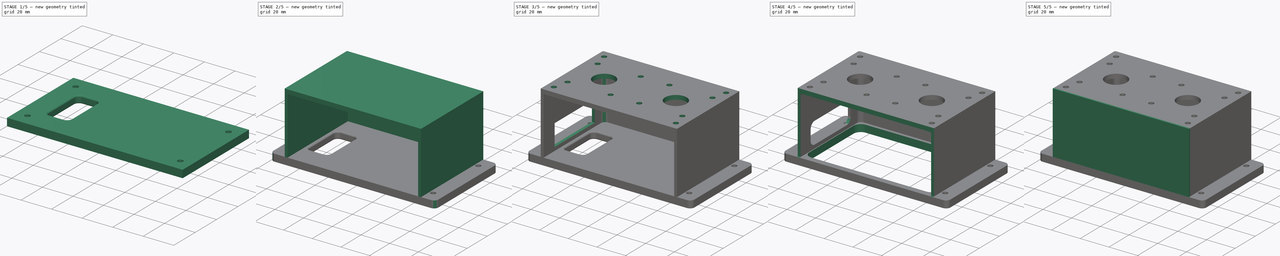
[diagram: build sequence overview — one tinted view per stage of 5, left to right]
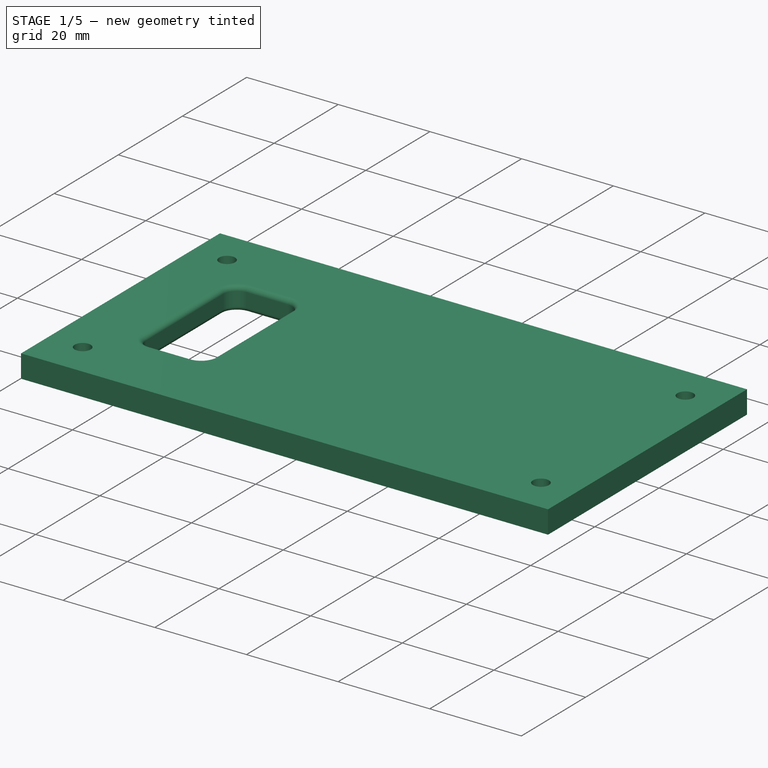
[diagram: stage 1 of 5 — iso view after this stage's code; geometry added in this stage tinted green]
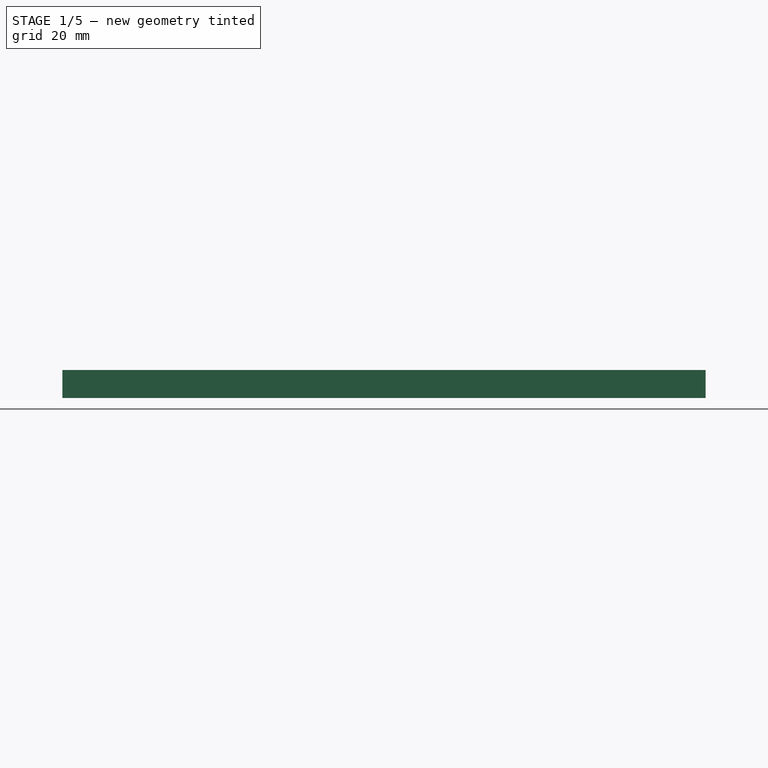
[diagram: stage 1 of 5 — front view after this stage's code; geometry added in this stage tinted green]
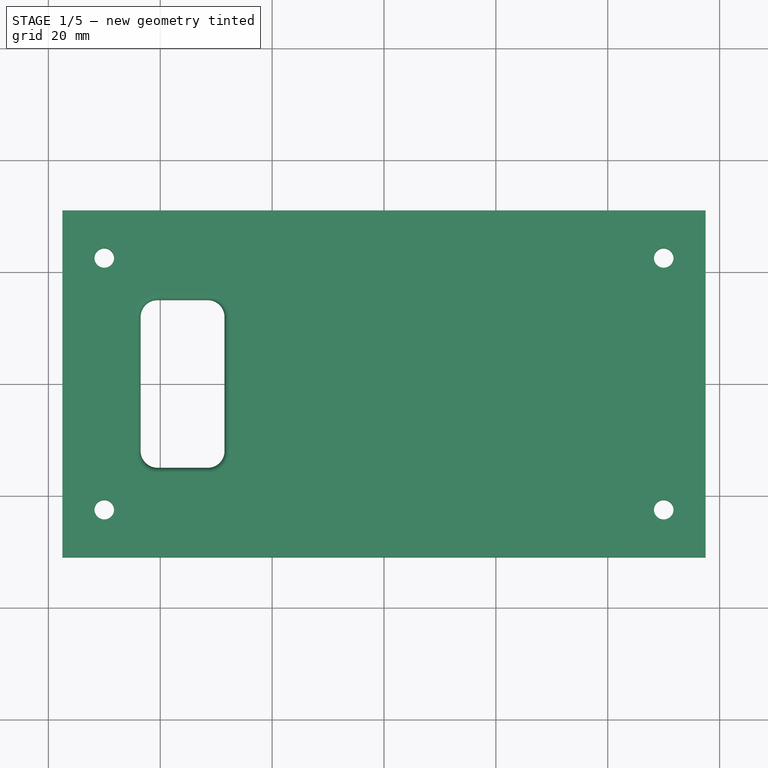
[diagram: stage 1 of 5 — top view after this stage's code; geometry added in this stage tinted green]
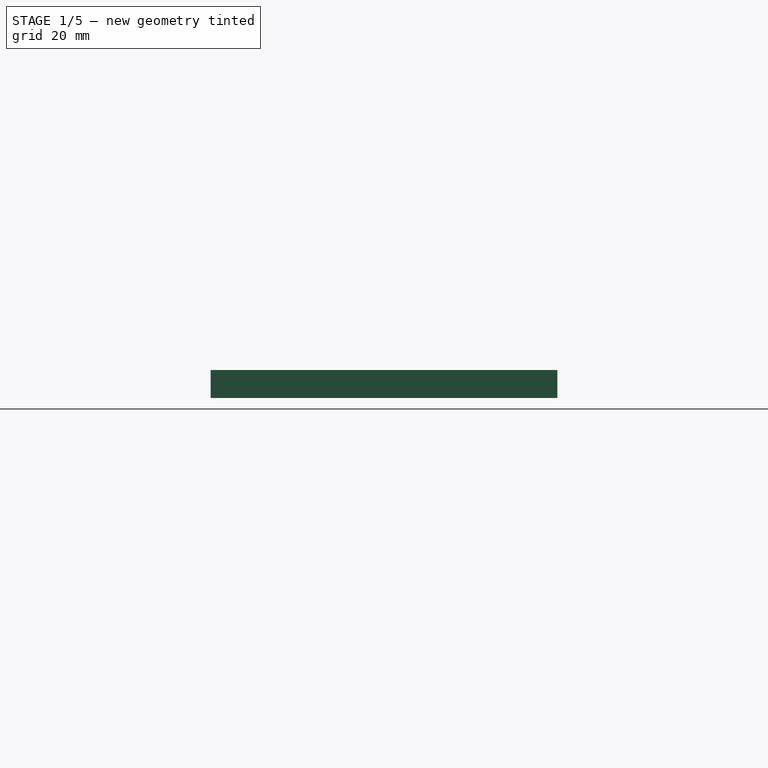
[diagram: stage 1 of 5 — right view after this stage's code; geometry added in this stage tinted green]
FCSTD DOCUMENT  (FreeCAD 0.21R33771 (Git))
Label: vertical_axis_mount
License: All rights reserved
LicenseURL: http://en.wikipedia.org/wiki/All_rights_reserved
objects: Sketcher::SketchObject×8, PartDesign::Fillet×7, PartDesign::Pad×5, PartDesign::Pocket×4, PartDesign::Body×1
note: 41 computed .brp shape members not serialized (recipe doc carries the construction recipe); baked Part::Feature solids carry a one-line shape summary decoded from their .brp

FEATURE [Sketcher::SketchObject] Sketch
  FullyConstrained = false
  MapMode = 5
  Support = -> [XY_Plane]
  sketch-geometry (26):
    g0: LineSegment StartX=-50 StartY=-22.5 StartZ=0 EndX=-50 EndY=22.5 EndZ=0
    g1: LineSegment StartX=-50 StartY=22.5 StartZ=0 EndX=50 EndY=22.5 EndZ=0
    g2: LineSegment StartX=50 StartY=22.5 StartZ=0 EndX=50 EndY=-22.5 EndZ=0
    g3: LineSegment StartX=50 StartY=-22.5 StartZ=0 EndX=-50 EndY=-22.5 EndZ=0
    g4: GeomPoint X=0 Y=0 Z=0
    g5: Circle CenterX=-50 CenterY=22.5 CenterZ=0 NormalX=0 NormalY=0 NormalZ=1 AngleXU=0 Radius=1.75
    g6: Circle CenterX=50 CenterY=22.5 CenterZ=0 NormalX=0 NormalY=0 NormalZ=1 AngleXU=0 Radius=1.75
    g7: Circle CenterX=-50 CenterY=-22.5 CenterZ=0 NormalX=0 NormalY=0 NormalZ=1 AngleXU=0 Radius=1.75
    g8: Circle CenterX=50 CenterY=-22.5 CenterZ=0 NormalX=0 NormalY=0 NormalZ=1 AngleXU=0 Radius=1.75
    g9: LineSegment StartX=-57.5 StartY=-31 StartZ=0 EndX=-57.5 EndY=31 EndZ=0
    g10: LineSegment StartX=-57.5 StartY=31 StartZ=0 EndX=57.5 EndY=31 EndZ=0
    g11: LineSegment StartX=57.5 StartY=31 StartZ=0 EndX=57.5 EndY=-31 EndZ=0
    g12: LineSegment StartX=57.5 StartY=-31 StartZ=0 EndX=-57.5 EndY=-31 EndZ=0
    g13: GeomPoint X=0 Y=0 Z=0
    g14: ArcOfCircle CenterX=-40.5 CenterY=12 CenterZ=0 NormalX=0 NormalY=0 NormalZ=1 AngleXU=0 Radius=3 StartAngle=1.5708 EndAngle=3.14159
    g15: ArcOfCircle CenterX=-31.5 CenterY=12 CenterZ=0 NormalX=0 NormalY=0 NormalZ=1 AngleXU=0 Radius=3 StartAngle=1e-16 EndAngle=1.5708
    g16: LineSegment StartX=-28.5 StartY=12 StartZ=0 EndX=-28.5 EndY=-12 EndZ=0
    g17: ArcOfCircle CenterX=-31.5 CenterY=-12 CenterZ=0 NormalX=0 NormalY=0 NormalZ=1 AngleXU=0 Radius=3 StartAngle=4.71239 EndAngle=6.28319
    g18: ArcOfCircle CenterX=-40.5 CenterY=-12 CenterZ=0 NormalX=0 NormalY=0 NormalZ=1 AngleXU=0 Radius=3 StartAngle=3.14159 EndAngle=4.71239
    g19: LineSegment StartX=-43.5 StartY=-12 StartZ=0 EndX=-43.5 EndY=12 EndZ=0
    g20: GeomPoint X=-28.5 Y=-15 Z=0
    g21: LineSegment StartX=-40.5 StartY=-15 StartZ=0 EndX=-40.5 EndY=15 EndZ=0
    g22: LineSegment StartX=-31.5 StartY=15 StartZ=0 EndX=-31.5 EndY=-15 EndZ=0
    g23: GeomPoint X=-36 Y=0 Z=0
    g24: LineSegment StartX=-40.5 StartY=15 StartZ=0 EndX=-31.5 EndY=15 EndZ=0
    g25: LineSegment StartX=-40.5 StartY=-15 StartZ=0 EndX=-31.5 EndY=-15 EndZ=0
  constraints (62):
    c: Coincident(g0,g1)
    c: Coincident(g1,g2)
    c: Coincident(g2,g3)
    c: Coincident(g3,g0)
    c: Horizontal(g1)
    c: Horizontal(g3)
    c: Vertical(g0)
    c: Vertical(g2)
    c: Symmetric(g1,g0,g4)
    c: Coincident(g4,g-1)
    c: DistanceX(g1,g1) = 100
    c: DistanceY(g2,g2) = 45
    c: Coincident(g5,g0)
    c: Coincident(g6,g1)
    c: Coincident(g7,g0)
    c: Coincident(g8,g2)
    c: Coincident(g9,g10)
    c: Coincident(g10,g11)
    c: Coincident(g11,g12)
    c: Coincident(g12,g9)
    c: Horizontal(g10)
    c: Horizontal(g12)
    c: Vertical(g9)
    c: Vertical(g11)
    c: Symmetric(g10,g9,g13)
    c: Coincident(g13,g4)
    c: Equal(g7,g8)
    c: Equal(g7,g6)
    c: Equal(g7,g5)
    c: Diameter(g7) = 3.5
    c: DistanceX(g12,g12) = 115
    c: DistanceY(g11,g11) = 62
    c: Tangent(g15,g16) = 1.5708
    c: Tangent(g16,g17) = 1.5708
    c: Coincident(g21,g18) = 1.5708
    c: Tangent(g18,g19) = 1.5708
    c: Tangent(g19,g14) = 1.5708
    c: Vertical(g16)
    c: Vertical(g19)
    c: Equal(g15,g17)
    c: Equal(g17,g18)
    c: PointOnObject(g20,g16)
    c: Radius(g17) = 3
    c: Vertical(g21)
    c: Symmetric(g15,g21,g23)
    c: PointOnObject(g23,g-1)
    c: Coincident(g22,g17)
    c: DistanceY(g22,g22) = 30
    c: DistanceX(g23,g4) = 36
    c: Coincident(g24,g14)
    c: Coincident(g24,g15)
    c: Horizontal(g24)
    c: Coincident(g25,g18)
    c: Coincident(g25,g17)
    c: Horizontal(g25)
    c: Equal(g18,g14)
    c: PointOnObject(g14,g21)
    c: Coincident(g14,g21)
    c: Coincident(g15,g22)
    c: Parallel(g22,g21)
    c: PointOnObject(g15,g22)
    c: DistanceX(g18,g16) = 15
FEATURE [PartDesign::Pad] Pad
  Direction = (0,0,1)
  Length = 5
  Length2 = 10
  Profile = -> Sketch
  ReferenceAxis = -> Sketch [N_Axis]
  Type = 0
FEATURE [PartDesign::Fillet] Fillet
  Base = -> Pad [Edge24,Edge27,Edge30,Edge21,Edge18,Edge15,Edge35,Edge33]
  BaseFeature = -> Pad
  Radius = 1
  SupportTransform = false
  UseAllEdges = false
FEATURE [PartDesign::Fillet] Fillet001
  Base = -> Fillet [Edge15,Edge16,Edge17,Edge18,Edge19,Edge20,Edge6,Edge3]
  BaseFeature = -> Fillet
  Radius = 1
  SupportTransform = false
  UseAllEdges = false
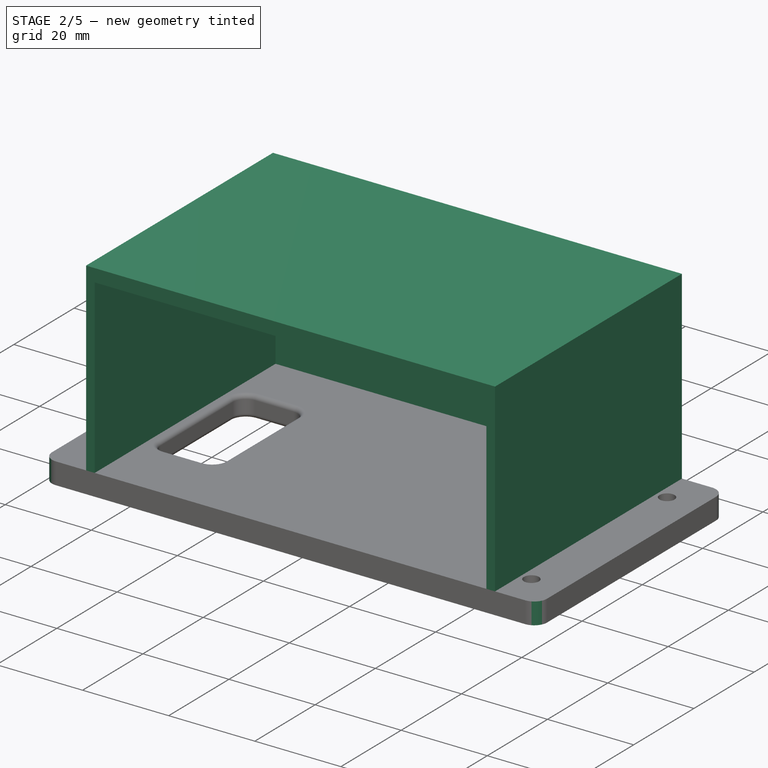
[diagram: stage 2 of 5 — iso view after this stage's code; geometry added in this stage tinted green]
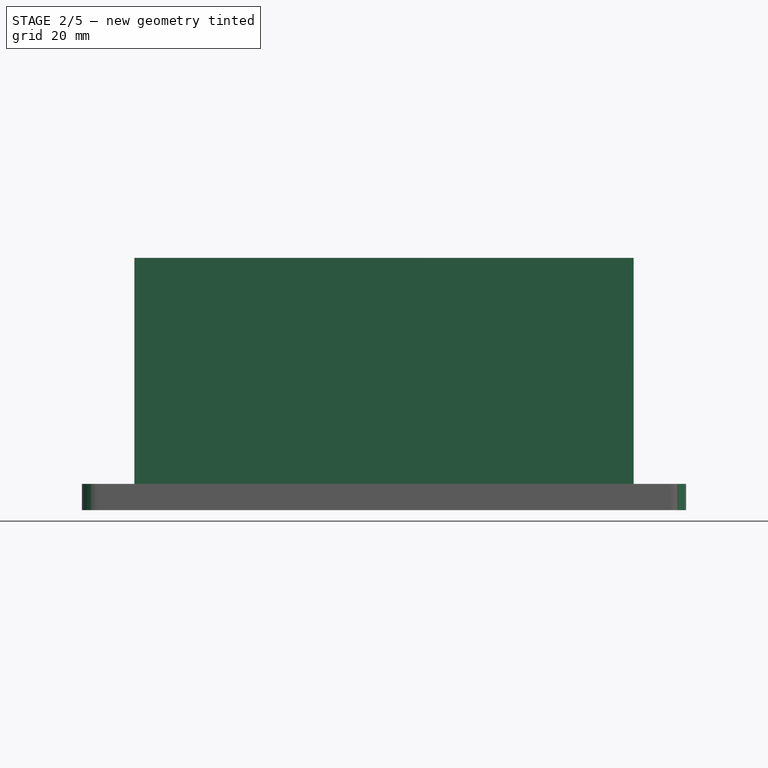
[diagram: stage 2 of 5 — front view after this stage's code; geometry added in this stage tinted green]
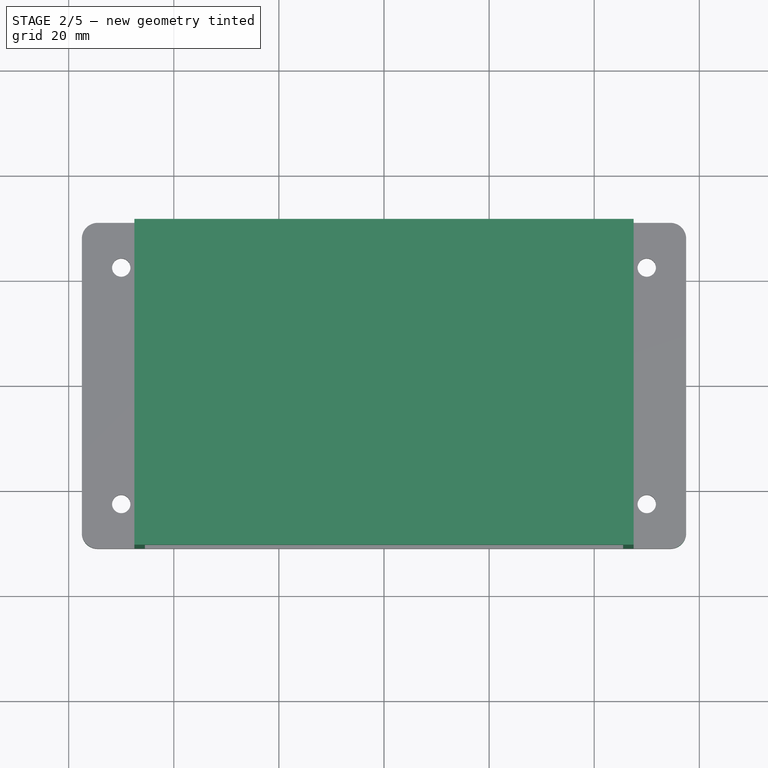
[diagram: stage 2 of 5 — top view after this stage's code; geometry added in this stage tinted green]
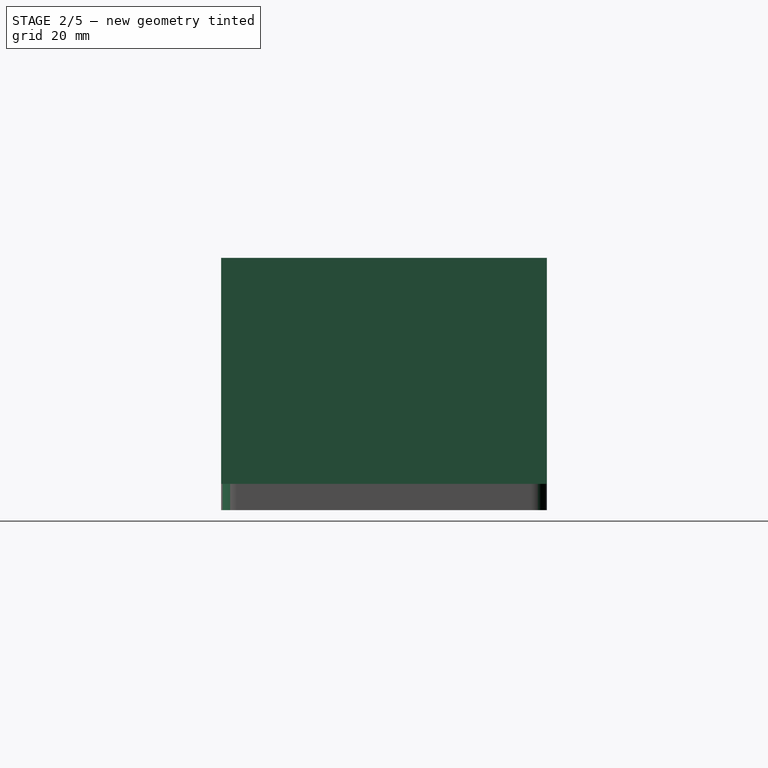
[diagram: stage 2 of 5 — right view after this stage's code; geometry added in this stage tinted green]
FEATURE [PartDesign::Fillet] Fillet002
  Base = -> Fillet001 [Edge67,Edge68,Edge70,Edge69]
  BaseFeature = -> Fillet001
  Radius = 3
  SupportTransform = false
  UseAllEdges = false
FEATURE [Sketcher::SketchObject] Sketch001
  FullyConstrained = true
  MapMode = 5
  Placement = pos=(0,0,5) rot=(0,0,1;0rad)
  Support = -> [Fillet002]
  sketch-geometry (9):
    g0: LineSegment StartX=-47.5 StartY=31 StartZ=0 EndX=47.5 EndY=31 EndZ=0
    g1: LineSegment StartX=47.5 StartY=31 StartZ=0 EndX=47.5 EndY=-31 EndZ=0
    g2: LineSegment StartX=-47.5 StartY=-31 StartZ=0 EndX=-47.5 EndY=31 EndZ=0
    g3: LineSegment StartX=-45.5 StartY=-31 StartZ=0 EndX=45.5 EndY=-31 EndZ=0
    g4: LineSegment StartX=45.5 StartY=-31 StartZ=0 EndX=45.5 EndY=29 EndZ=0
    g5: LineSegment StartX=45.5 StartY=29 StartZ=0 EndX=-45.5 EndY=29 EndZ=0
    g6: LineSegment StartX=-45.5 StartY=29 StartZ=0 EndX=-45.5 EndY=-31 EndZ=0
    g7: LineSegment StartX=47.5 StartY=-31 StartZ=0 EndX=45.5 EndY=-31 EndZ=0
    g8: LineSegment StartX=-45.5 StartY=-31 StartZ=0 EndX=-47.5 EndY=-31 EndZ=0
  constraints (26):
    c: Coincident(g0,g1)
    c: Coincident(g2,g0)
    c: Horizontal(g0)
    c: Vertical(g1)
    c: Vertical(g2)
    c: DistanceY(g-1,g0) = 31
    c: DistanceY(g1,g1) = 62
    c: DistanceX(g0,g0) = 95
    c: DistanceX(g-1,g0) = 47.5
    c: Coincident(g3,g4)
    c: Coincident(g4,g5)
    c: Coincident(g5,g6)
    c: Coincident(g6,g3)
    c: Horizontal(g3)
    c: Horizontal(g5)
    c: Vertical(g4)
    c: Vertical(g6)
    c: DistanceY(g5,g0) = 2
    c: DistanceX(g0,g5) = 2
    c: DistanceX(g4,g0) = 2
    c: Coincident(g7,g1)
    c: Coincident(g7,g3)
    c: Horizontal(g7)
    c: Coincident(g8,g3)
    c: Horizontal(g8)
    c: Coincident(g8,g2)
FEATURE [PartDesign::Pad] Pad001
  BaseFeature = -> Fillet002
  Direction = (0,0,1)
  Length = 40
  Length2 = 10
  Profile = -> Sketch001
  ReferenceAxis = -> Sketch001 [N_Axis]
  Type = 0
FEATURE [Sketcher::SketchObject] Sketch002
  FullyConstrained = true
  MapMode = 5
  Placement = pos=(0,0,45) rot=(0,0,1;0rad)
  Support = -> [Pad001]
  sketch-geometry (5):
    g0: LineSegment StartX=-47.5 StartY=-31 StartZ=0 EndX=-47.5 EndY=31 EndZ=0
    g1: LineSegment StartX=-47.5 StartY=31 StartZ=0 EndX=47.5 EndY=31 EndZ=0
    g2: LineSegment StartX=47.5 StartY=31 StartZ=0 EndX=47.5 EndY=-31 EndZ=0
    g3: LineSegment StartX=47.5 StartY=-31 StartZ=0 EndX=-47.5 EndY=-31 EndZ=0
    g4: GeomPoint X=0 Y=0 Z=0
  constraints (12):
    c: Coincident(g0,g1)
    c: Coincident(g1,g2)
    c: Coincident(g2,g3)
    c: Coincident(g3,g0)
    c: Horizontal(g1)
    c: Horizontal(g3)
    c: Vertical(g0)
    c: Vertical(g2)
    c: Symmetric(g1,g0,g4)
    c: Coincident(g4,g-1)
    c: DistanceX(g1,g1) = 95
    c: DistanceY(g2,g2) = 62
FEATURE [PartDesign::Pad] Pad002
  BaseFeature = -> Pad001
  Direction = (0,0,1)
  Length = 3
  Length2 = 10
  Profile = -> Sketch002
  ReferenceAxis = -> Sketch002 [N_Axis]
  Type = 0
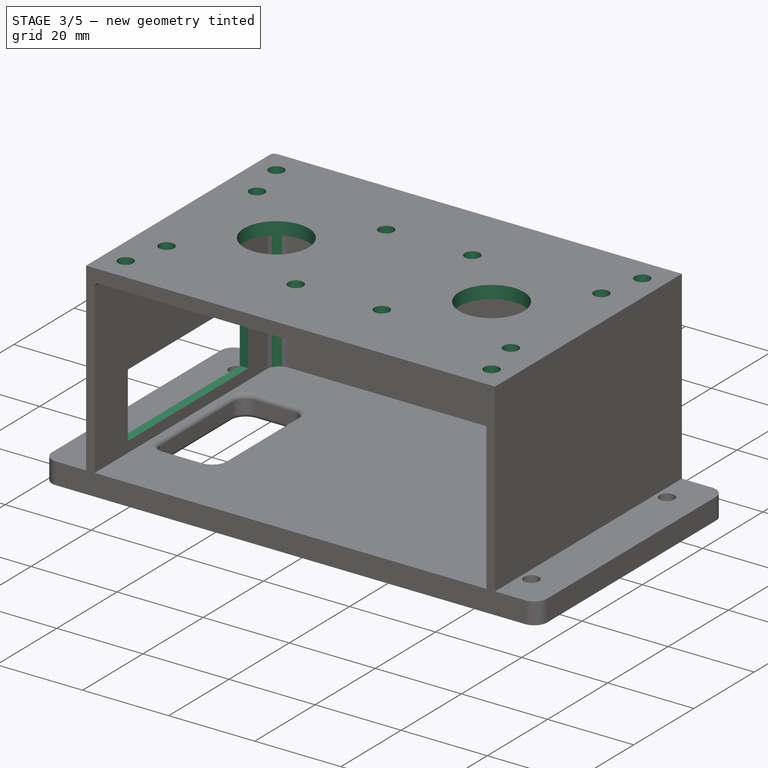
[diagram: stage 3 of 5 — iso view after this stage's code; geometry added in this stage tinted green]
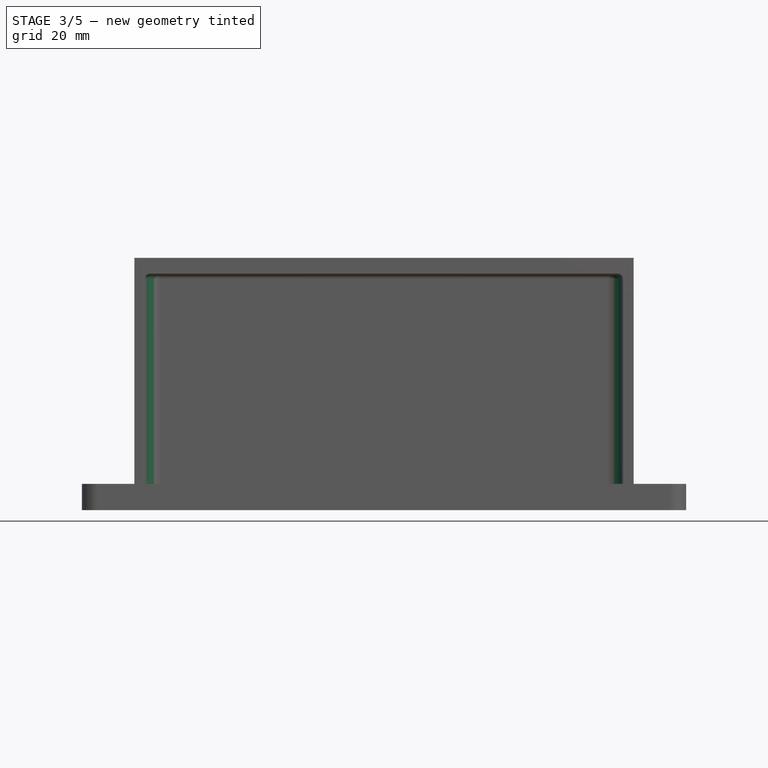
[diagram: stage 3 of 5 — front view after this stage's code; geometry added in this stage tinted green]
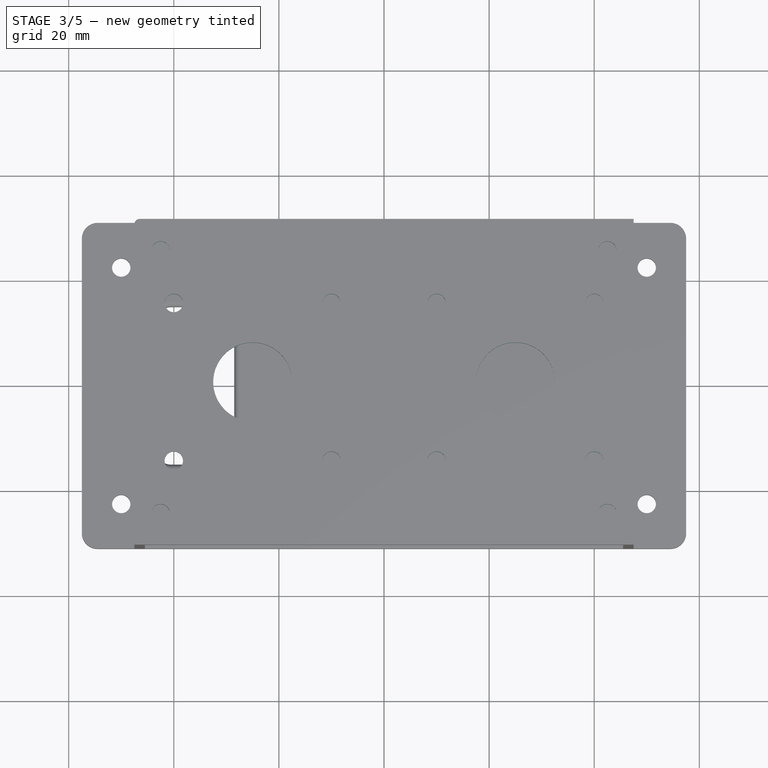
[diagram: stage 3 of 5 — top view after this stage's code; geometry added in this stage tinted green]
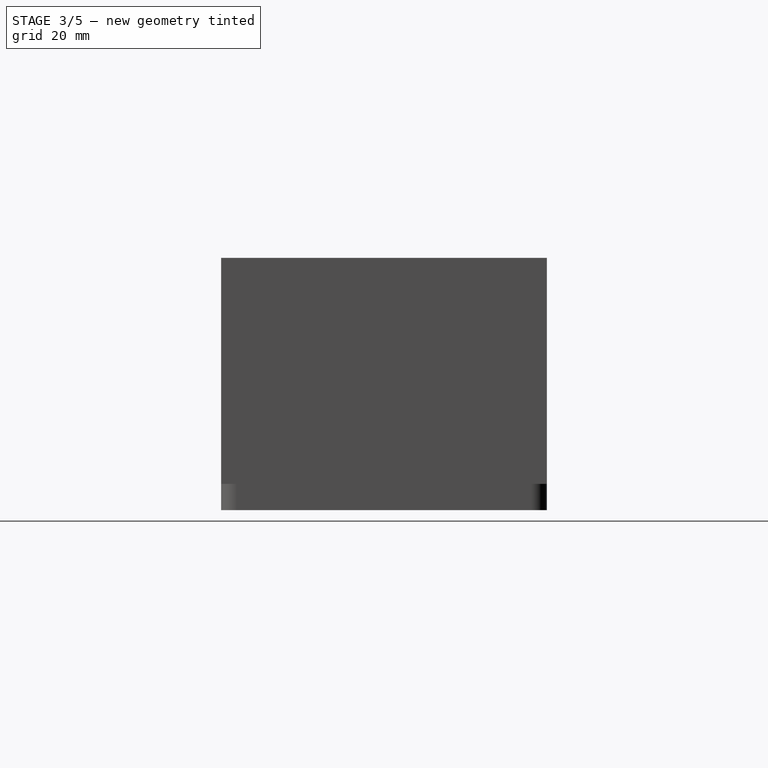
[diagram: stage 3 of 5 — right view after this stage's code; geometry added in this stage tinted green]
FEATURE [PartDesign::Fillet] Fillet003
  Base = -> Pad002 [Edge96,Edge102]
  BaseFeature = -> Pad002
  Radius = 3
  SupportTransform = false
  UseAllEdges = false
FEATURE [PartDesign::Fillet] Fillet004
  Base = -> Fillet003 [Edge105,Edge17,Edge19,Edge28,Edge32,Edge31]
  BaseFeature = -> Fillet003
  Radius = 1
  SupportTransform = false
  UseAllEdges = false
FEATURE [Sketcher::SketchObject] Sketch003
  FullyConstrained = true
  MapMode = 5
  Placement = pos=(-47.5,0,0) rot=(0.57735,-0.57735,-0.57735;2.0944rad)
  Support = -> [Fillet004]
  sketch-geometry (5):
    g0: LineSegment StartX=-20 StartY=7.5 StartZ=0 EndX=-20 EndY=22.5 EndZ=0
    g1: LineSegment StartX=-20 StartY=22.5 StartZ=0 EndX=20 EndY=22.5 EndZ=0
    g2: LineSegment StartX=20 StartY=22.5 StartZ=0 EndX=20 EndY=7.5 EndZ=0
    g3: LineSegment StartX=20 StartY=7.5 StartZ=0 EndX=-20 EndY=7.5 EndZ=0
    g4: GeomPoint X=0 Y=15 Z=0
  constraints (13):
    c: Coincident(g0,g1)
    c: Coincident(g1,g2)
    c: Coincident(g2,g3)
    c: Coincident(g3,g0)
    c: Horizontal(g1)
    c: Horizontal(g3)
    c: Vertical(g0)
    c: Vertical(g2)
    c: Symmetric(g1,g0,g4)
    c: PointOnObject(g4,g-2)
    c: DistanceY(g2,g2) = 15
    c: DistanceX(g3,g3) = 40
    c: DistanceY(g-1,g4) = 15
FEATURE [PartDesign::Pocket] Pocket
  BaseFeature = -> Fillet004
  Direction = (1,0,0)
  Length = 5
  Length2 = 5
  Profile = -> Sketch003
  ReferenceAxis = -> Sketch003 [N_Axis]
  Type = 0
FEATURE [Sketcher::SketchObject] Sketch004
  FullyConstrained = true
  MapMode = 5
  Placement = pos=(0,0,48) rot=(0,0,1;0rad)
  sketch-geometry (44):
    g0: LineSegment StartX=-40 StartY=15 StartZ=0 EndX=40 EndY=15 EndZ=0
    g1: LineSegment StartX=40 StartY=15 StartZ=0 EndX=40 EndY=-15 EndZ=0
    g2: LineSegment StartX=40 StartY=-15 StartZ=0 EndX=-40 EndY=-15 EndZ=0
    g3: GeomPoint X=0 Y=0 Z=0
    g4: LineSegment StartX=-40 StartY=-15 StartZ=0 EndX=-40 EndY=15 EndZ=0
    g5: LineSegment StartX=-40 StartY=15 StartZ=0 EndX=-10 EndY=15 EndZ=0
    g6: LineSegment StartX=-10 StartY=15 StartZ=0 EndX=-10 EndY=-15 EndZ=0
    g7: LineSegment StartX=-10 StartY=-15 StartZ=0 EndX=-40 EndY=-15 EndZ=0
    g8: GeomPoint X=-25 Y=-7e-16 Z=0
    g9: LineSegment StartX=40 StartY=15 StartZ=0 EndX=10 EndY=15 EndZ=0
    g10: LineSegment StartX=10 StartY=15 StartZ=0 EndX=10 EndY=-15 EndZ=0
    g11: LineSegment StartX=10 StartY=-15 StartZ=0 EndX=40 EndY=-15 EndZ=0
    g12: LineSegment StartX=40 StartY=-15 StartZ=0 EndX=40 EndY=15 EndZ=0
    g13: LineSegment StartX=10 StartY=-15 StartZ=0 EndX=40 EndY=15 EndZ=0
    g14: GeomPoint X=25 Y=0 Z=0
    g15: ArcOfCircle CenterX=-25 CenterY=-7e-16 CenterZ=0 NormalX=0 NormalY=0 NormalZ=1 AngleXU=0 Radius=7.5 StartAngle=1e-16 EndAngle=3.14159
    g16: ArcOfCircle CenterX=25 CenterY=0 CenterZ=0 NormalX=0 NormalY=0 NormalZ=1 AngleXU=0 Radius=7.5 StartAngle=0 EndAngle=3.14159
    g17: LineSegment StartX=-32.5 StartY=2e-16 StartZ=0 EndX=-17.5 EndY=-2.6e-15 EndZ=0
    g18: LineSegment StartX=-17.5 StartY=-2.6e-15 StartZ=0 EndX=-17.5 EndY=-50 EndZ=0
    g19: LineSegment StartX=-17.5 StartY=-50 StartZ=0 EndX=-32.5 EndY=-50 EndZ=0
    g20: LineSegment StartX=-32.5 StartY=-50 StartZ=0 EndX=-32.5 EndY=0 EndZ=0
    g21: LineSegment StartX=17.5 StartY=9e-16 StartZ=0 EndX=32.5 EndY=0 EndZ=0
    g22: LineSegment StartX=32.5 StartY=0 StartZ=0 EndX=32.5 EndY=-50 EndZ=0
    g23: LineSegment StartX=32.5 StartY=-50 StartZ=0 EndX=17.5 EndY=-50 EndZ=0
    g24: LineSegment StartX=17.5 StartY=-50 StartZ=0 EndX=17.5 EndY=0 EndZ=0
    g25: Circle CenterX=-40 CenterY=-15 CenterZ=0 NormalX=0 NormalY=0 NormalZ=1 AngleXU=0 Radius=1.75
    g26: Circle CenterX=-40 CenterY=15 CenterZ=0 NormalX=0 NormalY=0 NormalZ=1 AngleXU=0 Radius=1.75
    g27: Circle CenterX=-10 CenterY=15 CenterZ=0 NormalX=0 NormalY=0 NormalZ=1 AngleXU=0 Radius=1.75
    g28: Circle CenterX=10 CenterY=15 CenterZ=0 NormalX=0 NormalY=0 NormalZ=1 AngleXU=0 Radius=1.75
    g29: Circle CenterX=40 CenterY=15 CenterZ=0 NormalX=0 NormalY=0 NormalZ=1 AngleXU=0 Radius=1.75
    g30: Circle CenterX=40 CenterY=-15 CenterZ=0 NormalX=0 NormalY=0 NormalZ=1 AngleXU=0 Radius=1.75
    g31: Circle CenterX=10 CenterY=-15 CenterZ=0 NormalX=0 NormalY=0 NormalZ=1 AngleXU=0 Radius=1.75
    g32: Circle CenterX=-10 CenterY=-15 CenterZ=0 NormalX=0 NormalY=0 NormalZ=1 AngleXU=0 Radius=1.75
    g33: LineSegment StartX=-42.5 StartY=-25 StartZ=0 EndX=-42.5 EndY=25 EndZ=0
    g34: LineSegment StartX=-42.5 StartY=25 StartZ=0 EndX=42.5 EndY=25 EndZ=0
    g35: LineSegment StartX=42.5 StartY=25 StartZ=0 EndX=42.5 EndY=-25 EndZ=0
    g36: LineSegment StartX=42.5 StartY=-25 StartZ=0 EndX=-42.5 EndY=-25 EndZ=0
    g37: GeomPoint X=0 Y=0 Z=0
    g38: Circle CenterX=-42.5 CenterY=-25 CenterZ=0 NormalX=0 NormalY=0 NormalZ=1 AngleXU=0 Radius=1.75
    g39: Circle CenterX=-42.5 CenterY=25 CenterZ=0 NormalX=0 NormalY=0 NormalZ=1 AngleXU=0 Radius=1.75
    g40: Circle CenterX=42.5 CenterY=25 CenterZ=0 NormalX=0 NormalY=0 NormalZ=1 AngleXU=0 Radius=1.75
    g41: Circle CenterX=42.5 CenterY=-25 CenterZ=0 NormalX=0 NormalY=0 NormalZ=1 AngleXU=0 Radius=1.75
    g42: ArcOfCircle CenterX=-25 CenterY=-7e-16 CenterZ=0 NormalX=0 NormalY=0 NormalZ=1 AngleXU=0 Radius=7.5 StartAngle=3.14159 EndAngle=6.28319
    g43: ArcOfCircle CenterX=25 CenterY=0 CenterZ=0 NormalX=0 NormalY=0 NormalZ=1 AngleXU=0 Radius=7.5 StartAngle=3.14159 EndAngle=6.28319
  constraints (106):
    c: Coincident(g0,g1)
    c: Coincident(g1,g2)
    c: Horizontal(g0)
    c: Horizontal(g2)
    c: Vertical(g1)
    c: Symmetric(g0,g2,g3)
    c: Coincident(g3,g-1)
    c: Coincident(g4,g5)
    c: Coincident(g5,g6)
    c: Coincident(g6,g7)
    c: Coincident(g7,g4)
    c: Horizontal(g5)
    c: Horizontal(g7)
    c: Vertical(g4)
    c: Vertical(g6)
    c: Symmetric(g5,g4,g8)
    c: Equal(g5,g6)
    c: DistanceY(g6,g6) = 30
    c: Coincident(g2,g4)
    c: Coincident(g4,g0)
    c: Coincident(g9,g10)
    c: Coincident(g10,g11)
    c: Coincident(g11,g12)
    c: Coincident(g12,g9)
    c: Horizontal(g9)
    c: Horizontal(g11)
    c: Vertical(g10)
    c: Vertical(g12)
    c: Coincident(g9,g0)
    c: PointOnObject(g10,g2)
    c: DistanceX(g9,g0) = 30
    c: DistanceX(g5,g9) = 20
    c: Coincident(g13,g10)
    c: Coincident(g13,g0)
    c: PointOnObject(g14,g13)
    c: PointOnObject(g14,g-1)
    c: Coincident(g15,g8)
    c: PointOnObject(g15,g-1)
    c: PointOnObject(g15,g-1)
    c: Coincident(g16,g14)
    c: PointOnObject(g16,g-1)
    c: Equal(g16,g15)
    c: Coincident(g17,g18)
    c: Coincident(g18,g19)
    c: Coincident(g19,g20)
    c: Coincident(g20,g17)
    c: Horizontal(g19)
    c: Vertical(g18)
    c: Vertical(g20)
    c: Coincident(g17,g15)
    c: Coincident(g15,g17)
    c: Coincident(g21,g22)
    c: Coincident(g22,g23)
    c: Coincident(g23,g24)
    c: Coincident(g24,g21)
    c: Horizontal(g23)
    c: Vertical(g22)
    c: Vertical(g24)
    c: Coincident(g21,g16)
    c: Coincident(g21,g16)
    c: Equal(g24,g18)
    c: DistanceY(g22,g22) = 50
    c: DistanceX(g19,g19) = 15
    c: Coincident(g25,g2)
    c: Coincident(g26,g0)
    c: Coincident(g27,g5)
    c: Coincident(g28,g9)
    c: Coincident(g29,g0)
    c: Coincident(g30,g1)
    c: Coincident(g31,g10)
    c: Coincident(g32,g6)
    c: Equal(g32,g31)
    c: Equal(g32,g30)
    c: Equal(g32,g29)
    c: Equal(g32,g28)
    c: Equal(g32,g27)
    c: Equal(g32,g26)
    c: Equal(g32,g25)
    c: Diameter(g32) = 3.5
    c: Coincident(g33,g34)
    c: Coincident(g34,g35)
    c: Coincident(g35,g36)
    c: Coincident(g36,g33)
    c: Horizontal(g34)
    c: Horizontal(g36)
    c: Vertical(g33)
    c: Vertical(g35)
    c: Symmetric(g34,g33,g37)
    c: Coincident(g37,g3)
    c: DistanceY(g33,g33) = 50
    c: DistanceX(g34,g34) = 85
    c: Coincident(g38,g33)
    c: Coincident(g39,g33)
    c: Coincident(g40,g34)
    c: Coincident(g41,g35)
    c: Equal(g41,g38)
    c: Equal(g41,g39)
    c: Equal(g41,g40)
    c: Diameter(g41) = 3.5
    c: Coincident(g42,g15)
    c: Coincident(g42,g15)
    c: Coincident(g42,g15)
    c: Coincident(g43,g16)
    c: Coincident(g43,g16)
    c: PointOnObject(g43,g-1)
    c: Parallel(g21,g-1)
FEATURE [PartDesign::Pocket] Pocket001
  BaseFeature = -> Pocket
  Direction = (0,0,-1)
  Length = 5
  Length2 = 5
  Profile = -> Sketch004
  ReferenceAxis = -> Sketch004 [N_Axis]
  Type = 0
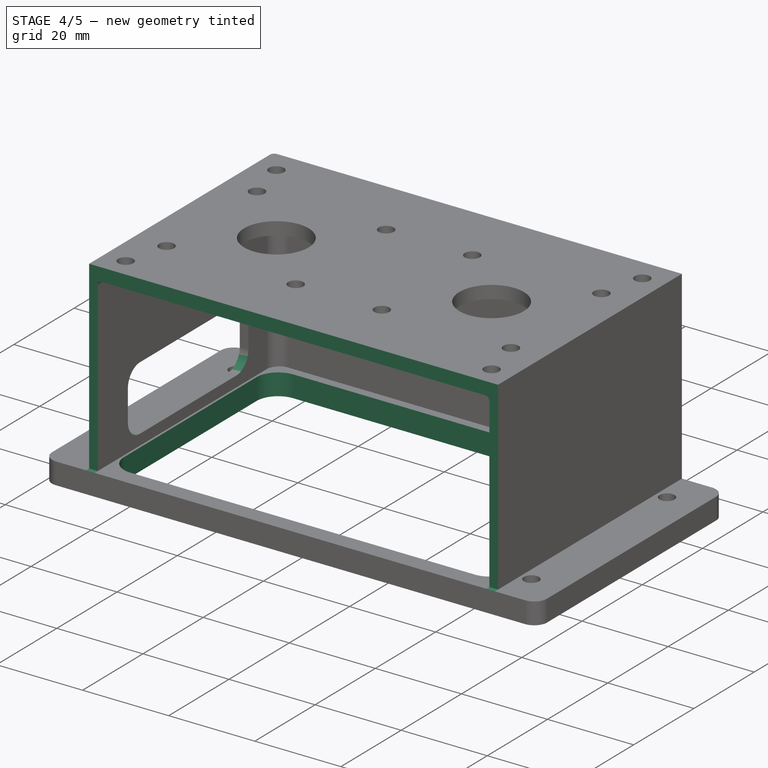
[diagram: stage 4 of 5 — iso view after this stage's code; geometry added in this stage tinted green]
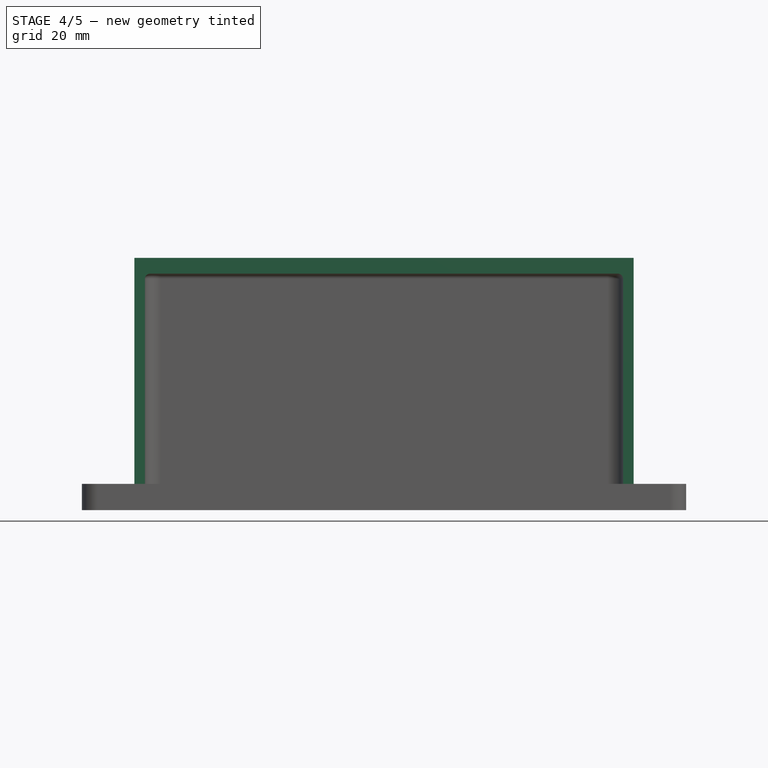
[diagram: stage 4 of 5 — front view after this stage's code; geometry added in this stage tinted green]
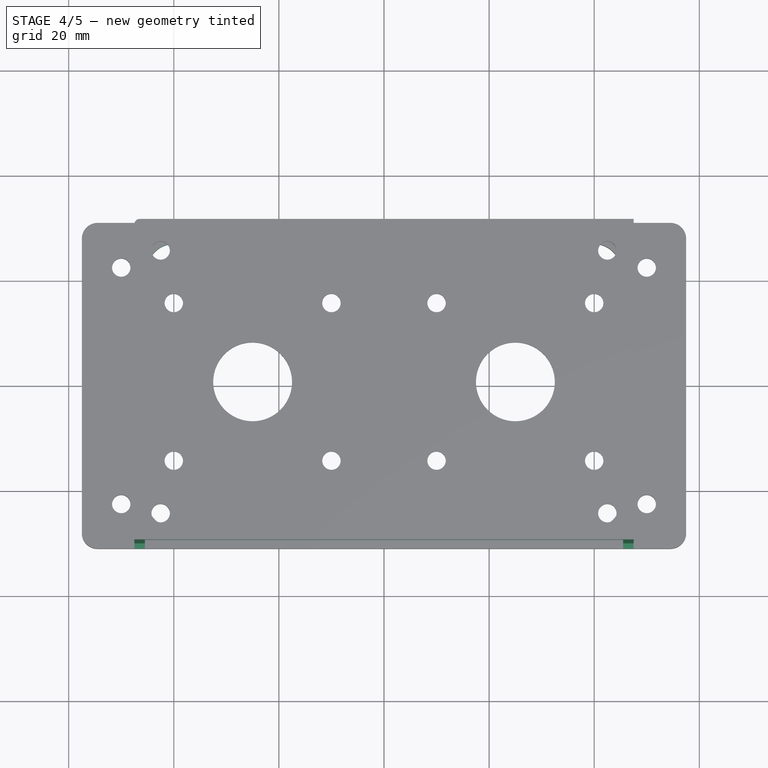
[diagram: stage 4 of 5 — top view after this stage's code; geometry added in this stage tinted green]
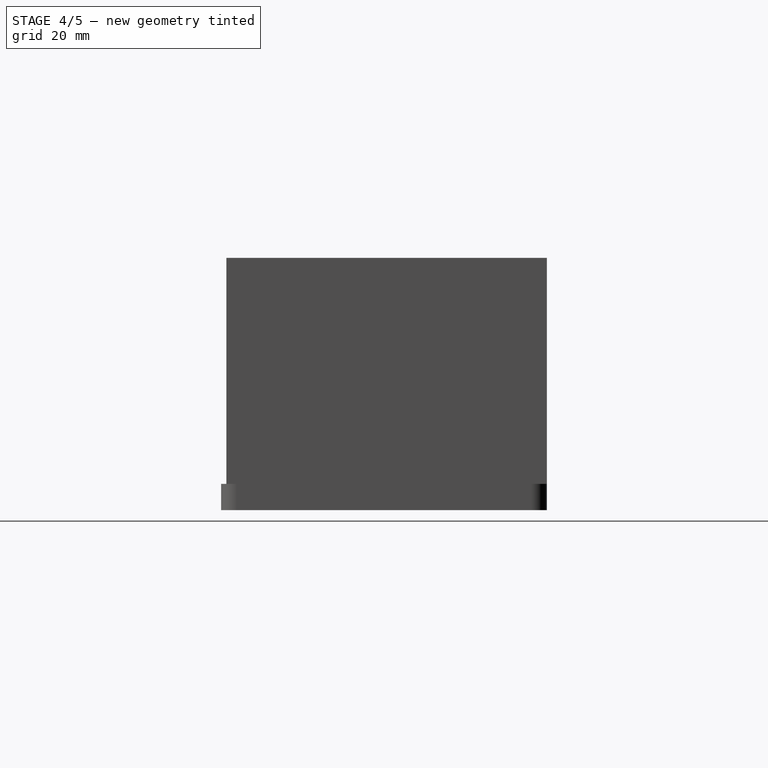
[diagram: stage 4 of 5 — right view after this stage's code; geometry added in this stage tinted green]
FEATURE [PartDesign::Fillet] Fillet005
  Base = -> Pocket001 [Edge33,Edge37,Edge32,Edge35]
  BaseFeature = -> Pocket001
  Radius = 4
  SupportTransform = false
  UseAllEdges = false
FEATURE [Sketcher::SketchObject] Sketch005
  FullyConstrained = true
  MapMode = 5
  Placement = pos=(0,0,0) rot=(1,0,0;3.14159rad)
  Support = -> [Fillet005]
  sketch-geometry (15):
    g0: ArcOfCircle CenterX=-40 CenterY=22 CenterZ=0 NormalX=0 NormalY=0 NormalZ=1 AngleXU=0 Radius=5 StartAngle=1.5708 EndAngle=3.14159
    g1: LineSegment StartX=-40 StartY=27 StartZ=0 EndX=40 EndY=27 EndZ=0
    g2: ArcOfCircle CenterX=40 CenterY=22 CenterZ=0 NormalX=0 NormalY=0 NormalZ=1 AngleXU=0 Radius=5 StartAngle=0 EndAngle=1.5708
    g3: LineSegment StartX=45 StartY=22 StartZ=0 EndX=45 EndY=-22 EndZ=0
    g4: ArcOfCircle CenterX=40 CenterY=-22 CenterZ=0 NormalX=0 NormalY=0 NormalZ=1 AngleXU=0 Radius=5 StartAngle=4.71239 EndAngle=6.28319
    g5: LineSegment StartX=40 StartY=-27 StartZ=0 EndX=-40 EndY=-27 EndZ=0
    g6: ArcOfCircle CenterX=-40 CenterY=-22 CenterZ=0 NormalX=0 NormalY=0 NormalZ=1 AngleXU=0 Radius=5 StartAngle=3.14159 EndAngle=4.71239
    g7: LineSegment StartX=-45 StartY=-22 StartZ=0 EndX=-45 EndY=22 EndZ=0
    g8: GeomPoint X=-45 Y=27 Z=0
    g9: GeomPoint X=45 Y=-27 Z=0
    g10: LineSegment StartX=-40 StartY=-22 StartZ=0 EndX=-40 EndY=22 EndZ=0
    g11: LineSegment StartX=-40 StartY=22 StartZ=0 EndX=40 EndY=22 EndZ=0
    g12: LineSegment StartX=40 StartY=22 StartZ=0 EndX=40 EndY=-22 EndZ=0
    g13: LineSegment StartX=40 StartY=-22 StartZ=0 EndX=-40 EndY=-22 EndZ=0
    g14: GeomPoint X=0 Y=0 Z=0
  constraints (33):
    c: Tangent(g0,g1) = 1.5708
    c: Tangent(g1,g2) = 1.5708
    c: Tangent(g2,g3) = 1.5708
    c: Tangent(g3,g4) = 1.5708
    c: Tangent(g4,g5) = 1.5708
    c: Tangent(g5,g6) = 1.5708
    c: Tangent(g6,g7) = 1.5708
    c: Tangent(g7,g0) = 1.5708
    c: Horizontal(g1)
    c: Horizontal(g5)
    c: Vertical(g3)
    c: Vertical(g7)
    c: Equal(g0,g2)
    c: Equal(g2,g4)
    c: Equal(g4,g6)
    c: PointOnObject(g8,g1)
    c: PointOnObject(g8,g7)
    c: PointOnObject(g9,g3)
    c: PointOnObject(g9,g5)
    c: Coincident(g10,g11)
    c: Coincident(g11,g12)
    c: Coincident(g12,g13)
    c: Coincident(g13,g10)
    c: Horizontal(g11)
    c: Vertical(g12)
    c: Symmetric(g11,g10,g14)
    c: Coincident(g14,g-1)
    c: Coincident(g10,g0)
    c: Coincident(g6,g10)
    c: DistanceY(g5,g0) = 54
    c: Radius(g0) = 5
    c: Coincident(g4,g12)
    c: DistanceX(g11,g11) = 80
FEATURE [PartDesign::Pocket] Pocket002
  BaseFeature = -> Fillet005
  Direction = (0,0,1)
  Length = 5
  Length2 = 5
  Profile = -> Sketch005
  ReferenceAxis = -> Sketch005 [N_Axis]
  Type = 0
FEATURE [Sketcher::SketchObject] Sketch006
  FullyConstrained = true
  MapMode = 5
  Placement = pos=(0,-31,0) rot=(1,0,0;1.5708rad)
  Support = -> [Pocket002]
  sketch-geometry (4):
    g0: LineSegment StartX=-47.5 StartY=5 StartZ=0 EndX=47.5 EndY=5 EndZ=0
    g1: LineSegment StartX=47.5 StartY=5 StartZ=0 EndX=47.5 EndY=48 EndZ=0
    g2: LineSegment StartX=47.5 StartY=48 StartZ=0 EndX=-47.5 EndY=48 EndZ=0
    g3: LineSegment StartX=-47.5 StartY=48 StartZ=0 EndX=-47.5 EndY=5 EndZ=0
  constraints (12):
    c: Coincident(g0,g1)
    c: Coincident(g1,g2)
    c: Coincident(g2,g3)
    c: Coincident(g3,g0)
    c: Horizontal(g0)
    c: Horizontal(g2)
    c: Vertical(g1)
    c: Vertical(g3)
    c: DistanceY(g-1,g1) = 48
    c: DistanceX(g2,g2) = 95
    c: DistanceX(g-1,g1) = 47.5
    c: DistanceY(g-1,g0) = 5
FEATURE [PartDesign::Pocket] Pocket003
  BaseFeature = -> Pocket002
  Direction = (0,1,-2e-16)
  Length = 1
  Length2 = 5
  Profile = -> Sketch006
  ReferenceAxis = -> Sketch006 [N_Axis]
  Type = 0
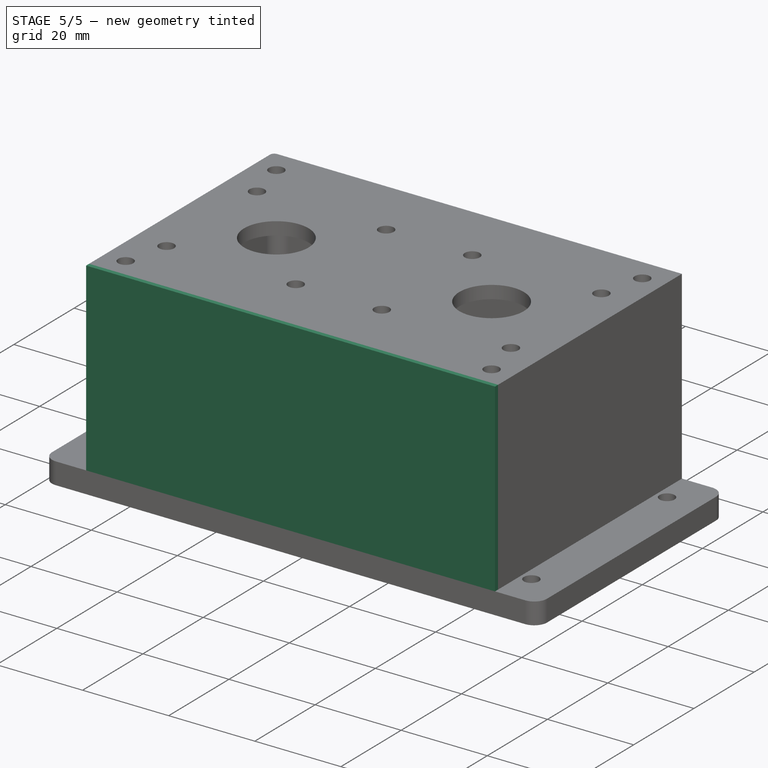
[diagram: stage 5 of 5 — iso view after this stage's code; geometry added in this stage tinted green]
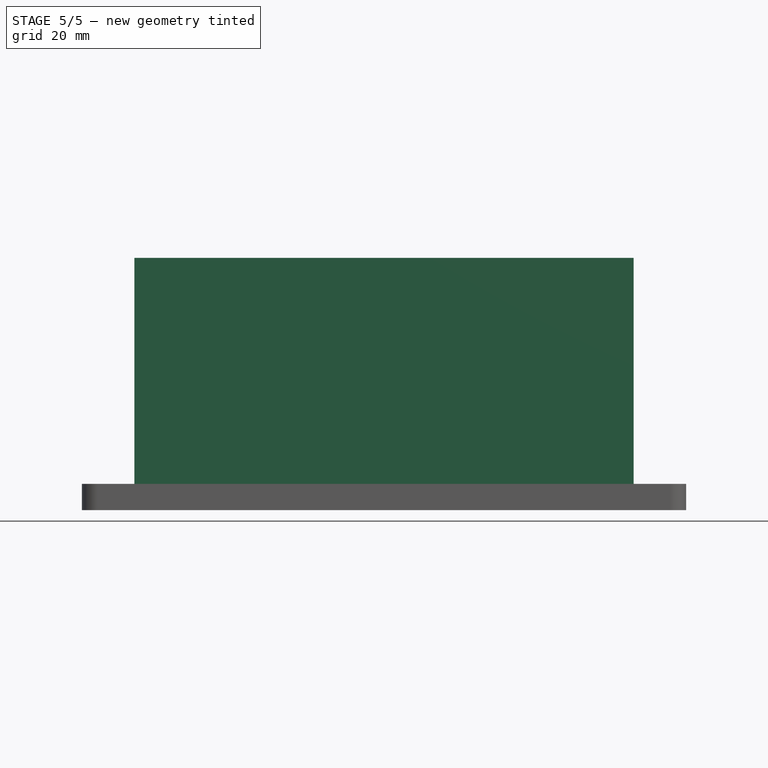
[diagram: stage 5 of 5 — front view after this stage's code; geometry added in this stage tinted green]
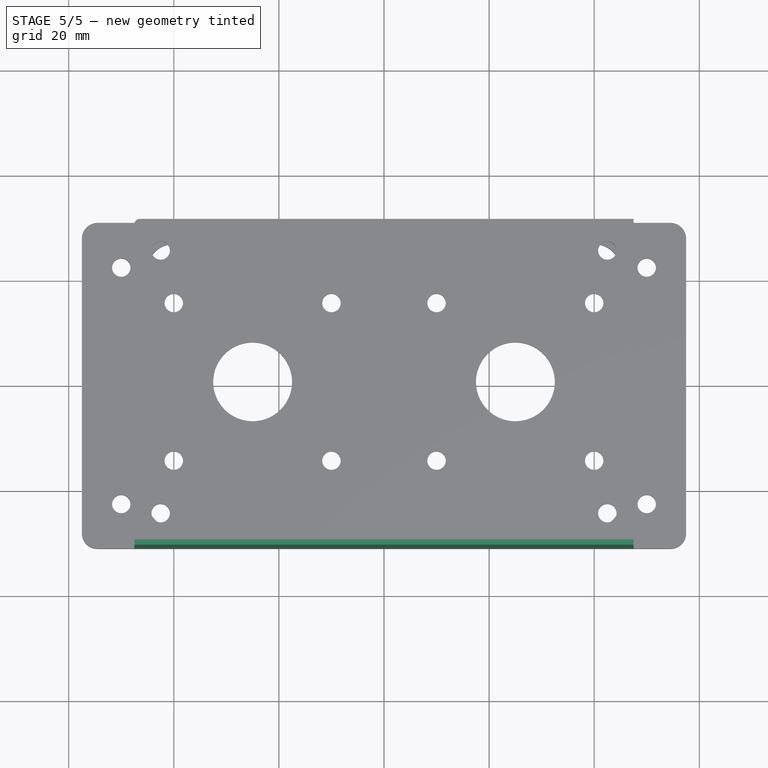
[diagram: stage 5 of 5 — top view after this stage's code; geometry added in this stage tinted green]
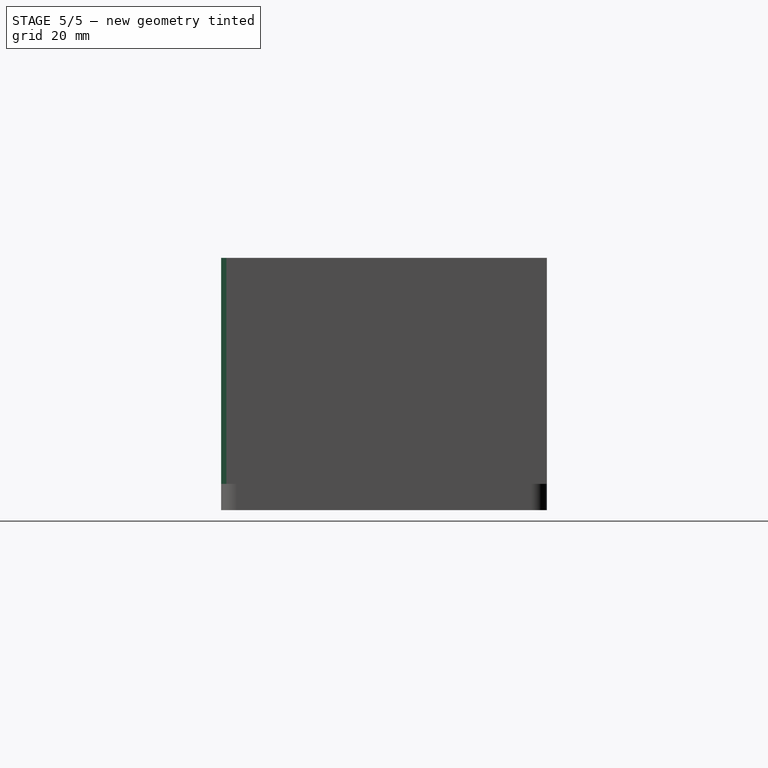
[diagram: stage 5 of 5 — right view after this stage's code; geometry added in this stage tinted green]
FEATURE [Sketcher::SketchObject] Sketch007
  FullyConstrained = true
  MapMode = 5
  Placement = pos=(0,-30,7.4e-15) rot=(1,0,0;1.5708rad)
  Support = -> [Pocket003]
  sketch-geometry (4):
    g0: LineSegment StartX=-47.5 StartY=48 StartZ=0 EndX=47.5 EndY=48 EndZ=0
    g1: LineSegment StartX=47.5 StartY=48 StartZ=0 EndX=47.5 EndY=5 EndZ=0
    g2: LineSegment StartX=47.5 StartY=5 StartZ=0 EndX=-47.5 EndY=5 EndZ=0
    g3: LineSegment StartX=-47.5 StartY=5 StartZ=0 EndX=-47.5 EndY=48 EndZ=0
  constraints (12):
    c: Coincident(g0,g1)
    c: Coincident(g1,g2)
    c: Coincident(g2,g3)
    c: Coincident(g3,g0)
    c: Horizontal(g0)
    c: Horizontal(g2)
    c: Vertical(g1)
    c: Vertical(g3)
    c: DistanceY(g-1,g1) = 5
    c: DistanceY(g1,g1) = 43
    c: DistanceX(g0,g0) = 95
    c: DistanceX(g-1,g0) = 47.5
FEATURE [PartDesign::Pad] Pad003
  BaseFeature = -> Pocket003
  Direction = (0,-1,2e-16)
  Length = 1
  Length2 = 10
  Profile = -> Sketch007
  ReferenceAxis = -> Sketch007 [N_Axis]
  Type = 0
FEATURE [PartDesign::Pad] Pad004
  BaseFeature = -> Pad003
  Direction = (0,1,-2e-16)
  Length = 1
  Length2 = 10
  Profile = -> Pad003 [Face4]
  Type = 0
FEATURE [PartDesign::Fillet] Fillet006
  Base = -> Pad004 [Edge30]
  BaseFeature = -> Pad004
  Radius = 1
  SupportTransform = false
  UseAllEdges = false
FEATURE [PartDesign::Body] Body
  Group = -> [Sketch,Pad,Fillet,Fillet001,Fillet002,Sketch001,Pad001,Sketch002,Pad002,Fillet003,Fillet004,Sketch003,Pocket,Sketch004,Pocket001,Fillet005,Sketch005,Pocket002,Sketch006,Pocket003,Sketch007,Pad003,Pad004,Fillet006]
  Origin = -> Origin
  Tip = -> Fillet006
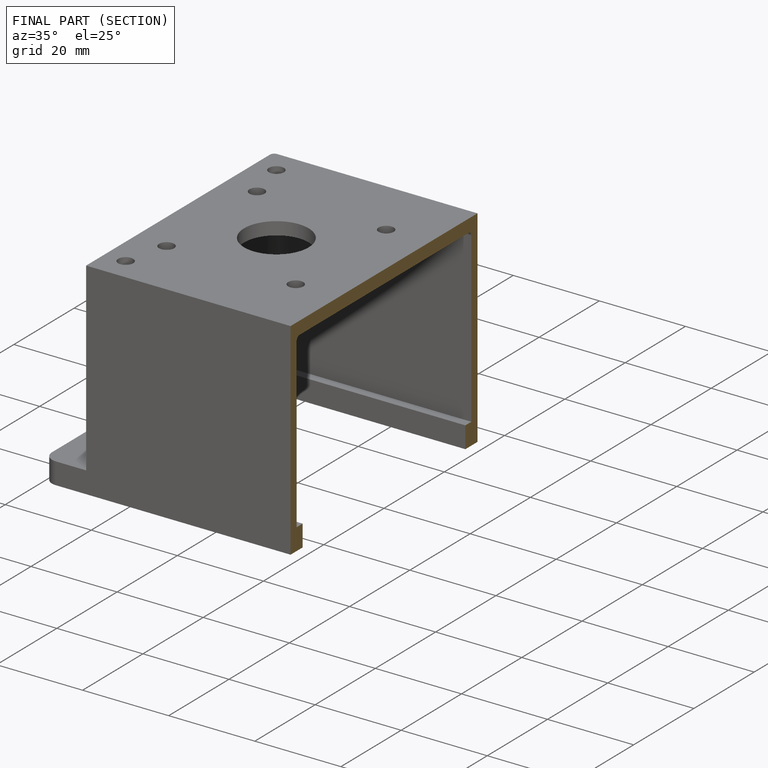
[diagram: finished part — half-section view (interior)]
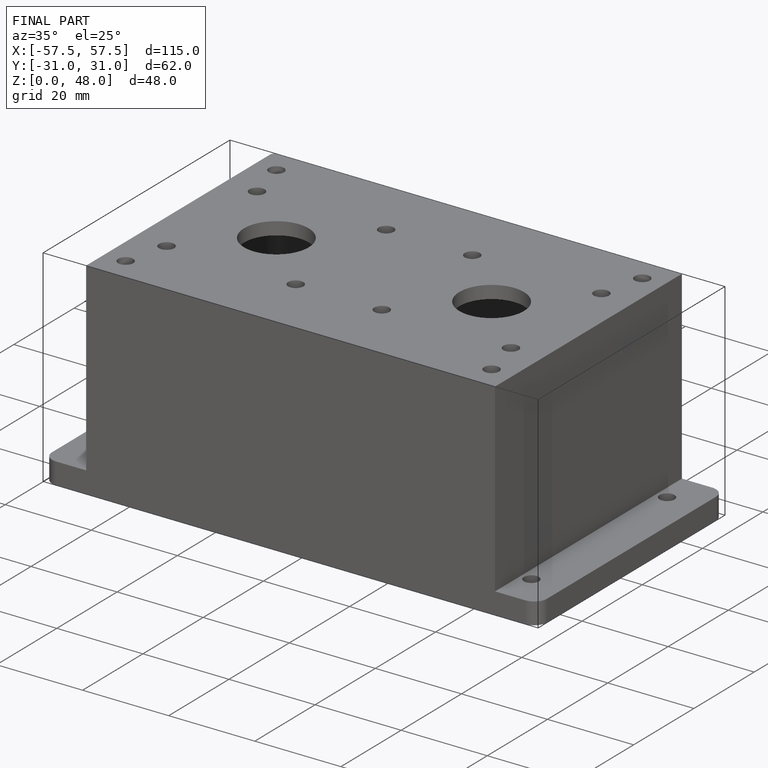
[diagram: finished part — iso view with bounding-box wireframe]
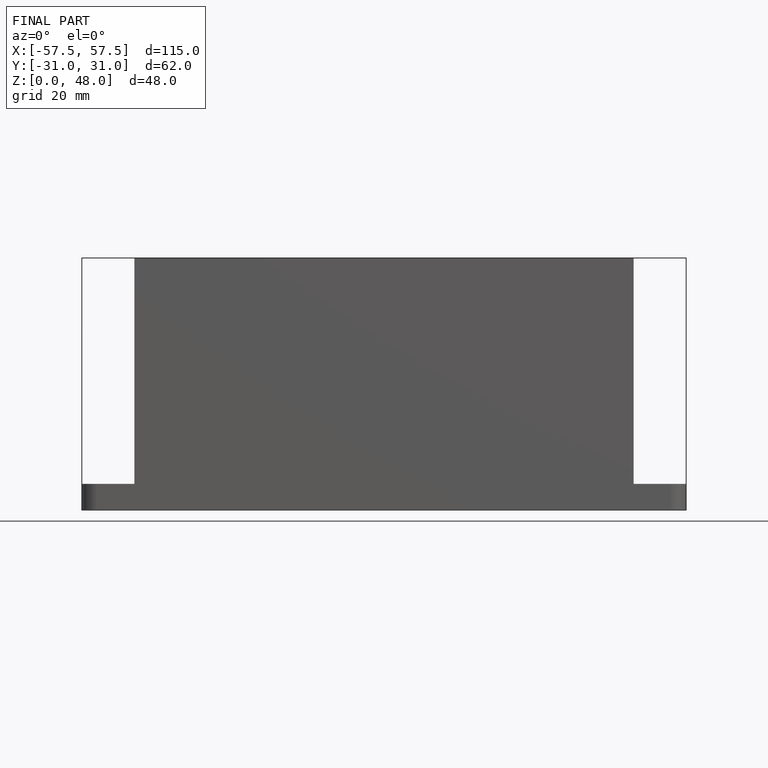
[diagram: finished part — front view with bounding-box wireframe]
